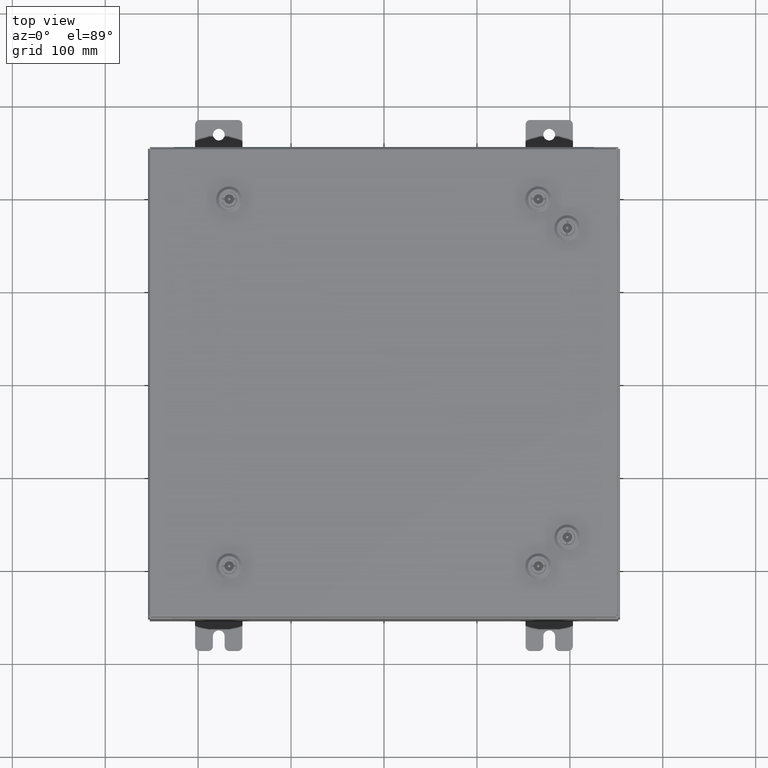
[diagram: clean part render]
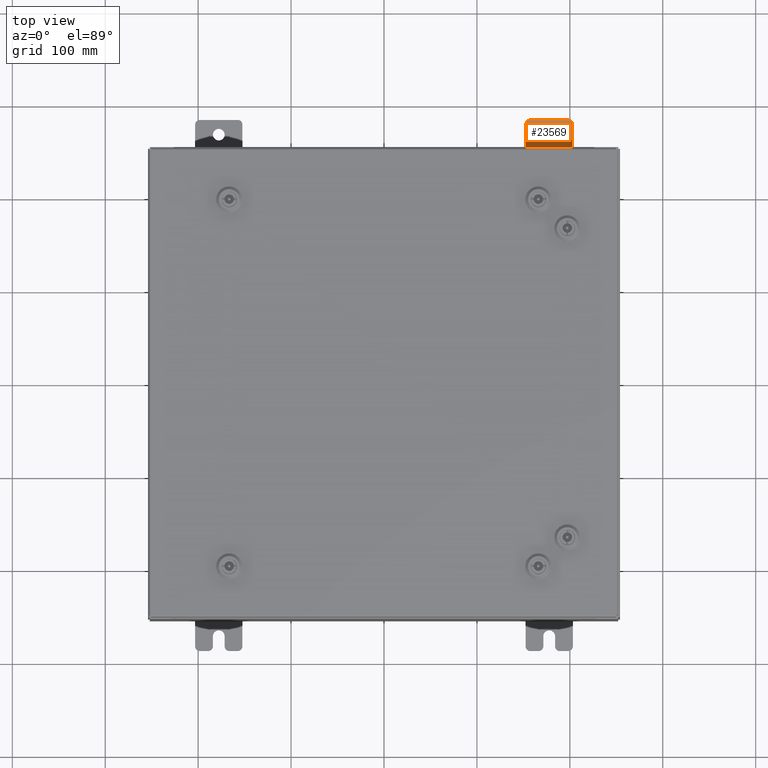
[diagram: same view with one face highlighted and labeled with its STEP entity id]
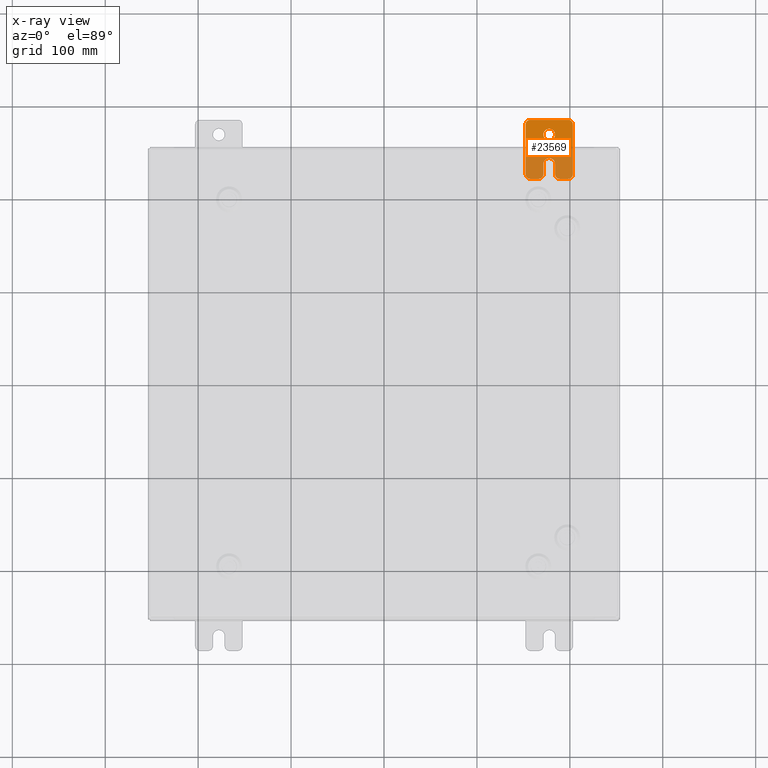
[diagram: x-ray of the same camera — body ghosted, the highlighted face saturated]
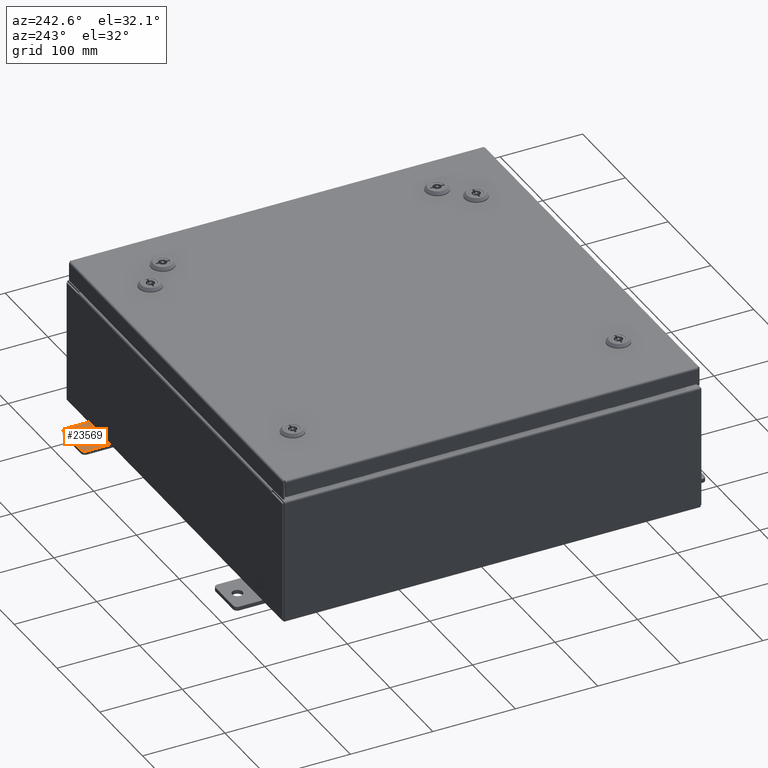
[diagram: same view with one face highlighted and labeled with its STEP entity id]
A machine part, top view. The second image highlights one B-rep face of the part: STEP entity #23569.
The next image is the same camera in x-ray: the body ghosted, the highlighted face saturated — about 52% of this face is hidden behind the body in this view.
A second angle (auxiliary view) of the same face is appended — the face is thin or edge-on in the first view.
In plain terms, the highlighted planar face has unit normal (0, 0, 1).
Its self-contained STEP definition (entity closure, byte-faithful):
#229 = CARTESIAN_POINT ( 'NONE',  ( 0.0000000000000000000, -1.060000000000002100, 0.4400000000000016700 ) ) ;
#674 = ORIENTED_EDGE ( 'NONE', *, *, #22870, .T. ) ;
#756 = EDGE_CURVE ( 'NONE', #34777, #46141, #35525, .T. ) ;
#800 = AXIS2_PLACEMENT_3D ( 'NONE', #25054, #59294, #30032 ) ;
#823 = CARTESIAN_POINT ( 'NONE',  ( 0.0000000000000000000, -1.060000000000003400, -0.4400000000000005000 ) ) ;
#1048 = VERTEX_POINT ( 'NONE', #29150 ) ;
#1059 = VECTOR ( 'NONE', #20676, 39.37007874015748100 ) ;
#1789 = DIRECTION ( 'NONE',  ( 0.0000000000000000000, 1.000000000000000000, -1.639108796198558100E-015 ) ) ;
#2690 = DIRECTION ( 'NONE',  ( 0.0000000000000000000, 0.0000000000000000000, -1.000000000000000000 ) ) ;
#2819 = VERTEX_POINT ( 'NONE', #18762 ) ;
#3172 = VERTEX_POINT ( 'NONE', #43335 ) ;
#3279 = CIRCLE ( 'NONE', #57846, 0.1900000000000011100 ) ;
#5219 = DIRECTION ( 'NONE',  ( 0.0000000000000000000, 0.0000000000000000000, -1.000000000000000000 ) ) ;
#5278 = VERTEX_POINT ( 'NONE', #43042 ) ;
#5820 = DIRECTION ( 'NONE',  ( 0.0000000000000000000, 0.0000000000000000000, -1.000000000000000000 ) ) ;
#5873 = DIRECTION ( 'NONE',  ( 1.000000000000000000, 0.0000000000000000000, -0.0000000000000000000 ) ) ;
#6140 = CARTESIAN_POINT ( 'NONE',  ( 0.0000000000000000000, -1.250000000000004700, -0.4400000000000002200 ) ) ;
#6242 = CARTESIAN_POINT ( 'NONE',  ( 0.0000000000000000000, -1.250000000000002200, 0.9999999999999992200 ) ) ;
#7662 = CARTESIAN_POINT ( 'NONE',  ( 4.168508244714285900E-016, 0.6249999999999992200, 0.2499999999999999200 ) ) ;
#8284 = CARTESIAN_POINT ( 'NONE',  ( 0.0000000000000000000, 0.0000000000000000000, 0.0000000000000000000 ) ) ;
#8515 = EDGE_CURVE ( 'NONE', #9059, #2819, #16912, .T. ) ;
#9059 = VERTEX_POINT ( 'NONE', #45690 ) ;
#10804 = ORIENTED_EDGE ( 'NONE', *, *, #60912, .T. ) ;
#10981 = VECTOR ( 'NONE', #23255, 39.37007874015748100 ) ;
#11536 = CARTESIAN_POINT ( 'NONE',  ( 0.0000000000000000000, -1.250000000000005600, -1.000000000000006200 ) ) ;
#12069 = CARTESIAN_POINT ( 'NONE',  ( 4.780733988912460100E-016, -0.6249999999999993300, 5.858939755051854500E-017 ) ) ;
#13248 = DIRECTION ( 'NONE',  ( 1.000000000000000000, 0.0000000000000000000, -0.0000000000000000000 ) ) ;
#13269 = VERTEX_POINT ( 'NONE', #51182 ) ;
#13851 = CARTESIAN_POINT ( 'NONE',  ( 0.0000000000000000000, 1.249999999999997600, 0.9999999999999951200 ) ) ;
#15081 = EDGE_CURVE ( 'NONE', #13269, #16190, #55754, .T. ) ;
#15489 = LINE ( 'NONE', #45430, #28512 ) ;
#15841 = DIRECTION ( 'NONE',  ( 1.000000000000000000, -0.0000000000000000000, -5.163192708025532000E-017 ) ) ;
#16190 = VERTEX_POINT ( 'NONE', #18447 ) ;
#16243 = AXIS2_PLACEMENT_3D ( 'NONE', #60963, #60952, #60755 ) ;
#16595 = VERTEX_POINT ( 'NONE', #6140 ) ;
#16801 = AXIS2_PLACEMENT_3D ( 'NONE', #12069, #46516, #17004 ) ;
#16912 = CIRCLE ( 'NONE', #16243, 0.1900000000000011100 ) ;
#17004 = DIRECTION ( 'NONE',  ( -6.523827964459551700E-016, -1.000000000000000000, 0.0000000000000000000 ) ) ;
#18343 = ORIENTED_EDGE ( 'NONE', *, *, #756, .F. ) ;
#18447 = CARTESIAN_POINT ( 'NONE',  ( 0.0000000000000000000, 1.059999999999993400, -1.000000000000010000 ) ) ;
#18762 = CARTESIAN_POINT ( 'NONE',  ( 0.0000000000000000000, -1.250000000000002400, 0.8099999999999980500 ) ) ;
#18888 = ORIENTED_EDGE ( 'NONE', *, *, #58762, .T. ) ;
#19088 = EDGE_LOOP ( 'NONE', ( #25303, #56465, #59036, #63267, #61087, #18888, #27364, #63007, #674, #10804, #41662, #43264, #27788, #32505 ) ) ;
#19138 = EDGE_CURVE ( 'NONE', #19663, #5278, #49939, .T. ) ;
#19663 = VERTEX_POINT ( 'NONE', #49948 ) ;
#19830 = CARTESIAN_POINT ( 'NONE',  ( 0.0000000000000000000, -1.250000000000003100, 0.4400000000000020000 ) ) ;
#20470 = FACE_OUTER_BOUND ( 'NONE', #19088, .T. ) ;
#20676 = DIRECTION ( 'NONE',  ( -6.556435184794182400E-016, -1.000000000000000000, -1.639108796198545600E-016 ) ) ;
#21752 = CARTESIAN_POINT ( 'NONE',  ( 0.0000000000000000000, 1.059999999999993600, -0.8100000000000089400 ) ) ;
#22822 = VERTEX_POINT ( 'NONE', #59791 ) ;
#22870 = EDGE_CURVE ( 'NONE', #16595, #22822, #42126, .T. ) ;
#22885 = PLANE ( 'NONE',  #56233 ) ;
#23255 = DIRECTION ( 'NONE',  ( 0.0000000000000000000, 1.639108796198553600E-015, 1.000000000000000000 ) ) ;
#23569 = ADVANCED_FACE ( 'NONE', ( #57988, #20470 ), #22885, .T. ) ;
#24111 = LINE ( 'NONE', #54999, #1059 ) ;
#25054 = CARTESIAN_POINT ( 'NONE',  ( 4.039428427013647300E-016, 0.6249999999999992200, -9.783840404509077400E-018 ) ) ;
#25303 = ORIENTED_EDGE ( 'NONE', *, *, #50091, .T. ) ;
#26234 = EDGE_CURVE ( 'NONE', #30469, #19663, #44210, .T. ) ;
#26570 = EDGE_CURVE ( 'NONE', #16190, #32351, #60819, .T. ) ;
#26702 = DIRECTION ( 'NONE',  ( 0.0000000000000000000, 0.0000000000000000000, -1.000000000000000000 ) ) ;
#27364 = ORIENTED_EDGE ( 'NONE', *, *, #54022, .T. ) ;
#27788 = ORIENTED_EDGE ( 'NONE', *, *, #30232, .T. ) ;
#27983 = CIRCLE ( 'NONE', #40397, 0.1900000000000011100 ) ;
#28512 = VECTOR ( 'NONE', #59970, 39.37007874015748100 ) ;
#29150 = CARTESIAN_POINT ( 'NONE',  ( 1.928684683526964400E-016, -1.060000000000003400, -0.2499999999999994400 ) ) ;
#30032 = DIRECTION ( 'NONE',  ( -5.163192708025533800E-017, 0.0000000000000000000, -1.000000000000000000 ) ) ;
#30060 = AXIS2_PLACEMENT_3D ( 'NONE', #21752, #56075, #26702 ) ;
#30232 = EDGE_CURVE ( 'NONE', #32351, #61114, #50264, .T. ) ;
#30469 = VERTEX_POINT ( 'NONE', #19830 ) ;
#31421 = ORIENTED_EDGE ( 'NONE', *, *, #45693, .F. ) ;
#31531 = CIRCLE ( 'NONE', #800, 0.2499999999999999200 ) ;
#31565 = EDGE_LOOP ( 'NONE', ( #18343, #31421 ) ) ;
#32218 = DIRECTION ( 'NONE',  ( 1.000000000000000000, 0.0000000000000000000, -0.0000000000000000000 ) ) ;
#32351 = VERTEX_POINT ( 'NONE', #36844 ) ;
#32505 = ORIENTED_EDGE ( 'NONE', *, *, #59531, .T. ) ;
#32759 = CARTESIAN_POINT ( 'NONE',  ( 6.829619984160658000E-017, -1.250000000000003800, 0.2500000000000005000 ) ) ;
#34744 = DIRECTION ( 'NONE',  ( 1.000000000000000000, 0.0000000000000000000, -0.0000000000000000000 ) ) ;
#34777 = VERTEX_POINT ( 'NONE', #57934 ) ;
#35295 = VECTOR ( 'NONE', #52540, 39.37007874015748100 ) ;
#35330 = DIRECTION ( 'NONE',  ( 1.000000000000000000, 0.0000000000000000000, -0.0000000000000000000 ) ) ;
#35377 = CARTESIAN_POINT ( 'NONE',  ( 0.0000000000000000000, 1.059999999999996300, 0.8099999999999938400 ) ) ;
#35525 = CIRCLE ( 'NONE', #62198, 0.2499999999999999200 ) ;
#35747 = DIRECTION ( 'NONE',  ( 0.0000000000000000000, -1.639108796198553600E-015, -1.000000000000000000 ) ) ;
#36844 = CARTESIAN_POINT ( 'NONE',  ( 0.0000000000000000000, 1.249999999999994700, -0.8100000000000092700 ) ) ;
#37797 = CARTESIAN_POINT ( 'NONE',  ( 0.0000000000000000000, 1.249999999999994200, -1.000000000000010400 ) ) ;
#39528 = CARTESIAN_POINT ( 'NONE',  ( 0.0000000000000000000, 1.059999999999996500, 0.9999999999999953400 ) ) ;
#40339 = DIRECTION ( 'NONE',  ( 0.0000000000000000000, 0.0000000000000000000, -1.000000000000000000 ) ) ;
#40397 = AXIS2_PLACEMENT_3D ( 'NONE', #823, #35330, #5820 ) ;
#41662 = ORIENTED_EDGE ( 'NONE', *, *, #15081, .T. ) ;
#42126 = LINE ( 'NONE', #6242, #53555 ) ;
#42282 = EDGE_CURVE ( 'NONE', #1048, #16595, #27983, .T. ) ;
#42292 = DIRECTION ( 'NONE',  ( -5.163192708025533800E-017, 0.0000000000000000000, -1.000000000000000000 ) ) ;
#43042 = CARTESIAN_POINT ( 'NONE',  ( 0.0000000000000000000, -0.6249999999999992200, 0.2500000000000005000 ) ) ;
#43264 = ORIENTED_EDGE ( 'NONE', *, *, #26570, .T. ) ;
#43335 = CARTESIAN_POINT ( 'NONE',  ( 4.780733988912460100E-016, -0.6249999999999993300, -0.2499999999999998600 ) ) ;
#43527 = CARTESIAN_POINT ( 'NONE',  ( 4.039428427013647300E-016, 0.6249999999999992200, -9.783840404509077400E-018 ) ) ;
#44210 = CIRCLE ( 'NONE', #57520, 0.1900000000000011400 ) ;
#45430 = CARTESIAN_POINT ( 'NONE',  ( 0.0000000000000000000, -1.250000000000002200, 0.9999999999999992200 ) ) ;
#45690 = CARTESIAN_POINT ( 'NONE',  ( 0.0000000000000000000, -1.060000000000001200, 0.9999999999999988900 ) ) ;
#45693 = EDGE_CURVE ( 'NONE', #46141, #34777, #31531, .T. ) ;
#46141 = VERTEX_POINT ( 'NONE', #7662 ) ;
#46516 = DIRECTION ( 'NONE',  ( -1.000000000000000000, 6.523827964459549700E-016, 5.163192708025532000E-017 ) ) ;
#47336 = CIRCLE ( 'NONE', #55050, 0.1900000000000011100 ) ;
#47716 = DIRECTION ( 'NONE',  ( -0.0000000000000000000, 0.0000000000000000000, -1.000000000000000000 ) ) ;
#47944 = CARTESIAN_POINT ( 'NONE',  ( 0.0000000000000000000, 1.249999999999997300, 0.8099999999999935000 ) ) ;
#48241 = VECTOR ( 'NONE', #57744, 39.37007874015748100 ) ;
#49939 = LINE ( 'NONE', #32759, #35295 ) ;
#49948 = CARTESIAN_POINT ( 'NONE',  ( 1.928684683526972300E-016, -1.060000000000002100, 0.2500000000000005000 ) ) ;
#50091 = EDGE_CURVE ( 'NONE', #63601, #9059, #54289, .T. ) ;
#50264 = LINE ( 'NONE', #37797, #10981 ) ;
#51178 = CIRCLE ( 'NONE', #16801, 0.2499999999999999200 ) ;
#51182 = CARTESIAN_POINT ( 'NONE',  ( 0.0000000000000000000, -1.060000000000004500, -1.000000000000006400 ) ) ;
#52540 = DIRECTION ( 'NONE',  ( 6.556435184794182400E-016, 1.000000000000000000, 0.0000000000000000000 ) ) ;
#53555 = VECTOR ( 'NONE', #35747, 39.37007874015748100 ) ;
#54022 = EDGE_CURVE ( 'NONE', #3172, #1048, #24111, .T. ) ;
#54250 = VECTOR ( 'NONE', #1789, 39.37007874015748100 ) ;
#54289 = LINE ( 'NONE', #13851, #48241 ) ;
#54999 = CARTESIAN_POINT ( 'NONE',  ( 4.780733988912460100E-016, -0.6249999999999993300, -0.2499999999999993900 ) ) ;
#55050 = AXIS2_PLACEMENT_3D ( 'NONE', #35377, #5873, #40339 ) ;
#55754 = LINE ( 'NONE', #11536, #54250 ) ;
#56075 = DIRECTION ( 'NONE',  ( 1.000000000000000000, 0.0000000000000000000, -0.0000000000000000000 ) ) ;
#56233 = AXIS2_PLACEMENT_3D ( 'NONE', #8284, #13248, #47716 ) ;
#56465 = ORIENTED_EDGE ( 'NONE', *, *, #8515, .T. ) ;
#57520 = AXIS2_PLACEMENT_3D ( 'NONE', #229, #34744, #5219 ) ;
#57744 = DIRECTION ( 'NONE',  ( 0.0000000000000000000, -1.000000000000000000, 1.639108796198558100E-015 ) ) ;
#57846 = AXIS2_PLACEMENT_3D ( 'NONE', #61406, #32218, #2690 ) ;
#57934 = CARTESIAN_POINT ( 'NONE',  ( 3.910348609313009100E-016, 0.6249999999999992200, -0.2499999999999999200 ) ) ;
#57988 = FACE_BOUND ( 'NONE', #31565, .T. ) ;
#58762 = EDGE_CURVE ( 'NONE', #5278, #3172, #51178, .T. ) ;
#59036 = ORIENTED_EDGE ( 'NONE', *, *, #63171, .T. ) ;
#59294 = DIRECTION ( 'NONE',  ( 1.000000000000000000, -0.0000000000000000000, -5.163192708025532000E-017 ) ) ;
#59531 = EDGE_CURVE ( 'NONE', #61114, #63601, #47336, .T. ) ;
#59791 = CARTESIAN_POINT ( 'NONE',  ( 0.0000000000000000000, -1.250000000000005300, -0.8100000000000047200 ) ) ;
#59970 = DIRECTION ( 'NONE',  ( 0.0000000000000000000, -1.639108796198553600E-015, -1.000000000000000000 ) ) ;
#60755 = DIRECTION ( 'NONE',  ( 0.0000000000000000000, 0.0000000000000000000, -1.000000000000000000 ) ) ;
#60819 = CIRCLE ( 'NONE', #30060, 0.1900000000000011100 ) ;
#60912 = EDGE_CURVE ( 'NONE', #22822, #13269, #3279, .T. ) ;
#60952 = DIRECTION ( 'NONE',  ( 1.000000000000000000, 0.0000000000000000000, -0.0000000000000000000 ) ) ;
#60963 = CARTESIAN_POINT ( 'NONE',  ( 0.0000000000000000000, -1.060000000000001600, 0.8099999999999978300 ) ) ;
#61087 = ORIENTED_EDGE ( 'NONE', *, *, #19138, .T. ) ;
#61114 = VERTEX_POINT ( 'NONE', #47944 ) ;
#61406 = CARTESIAN_POINT ( 'NONE',  ( 0.0000000000000000000, -1.060000000000004100, -0.8100000000000050500 ) ) ;
#62198 = AXIS2_PLACEMENT_3D ( 'NONE', #43527, #15841, #42292 ) ;
#63007 = ORIENTED_EDGE ( 'NONE', *, *, #42282, .T. ) ;
#63171 = EDGE_CURVE ( 'NONE', #2819, #30469, #15489, .T. ) ;
#63267 = ORIENTED_EDGE ( 'NONE', *, *, #26234, .T. ) ;
#63601 = VERTEX_POINT ( 'NONE', #39528 ) ;